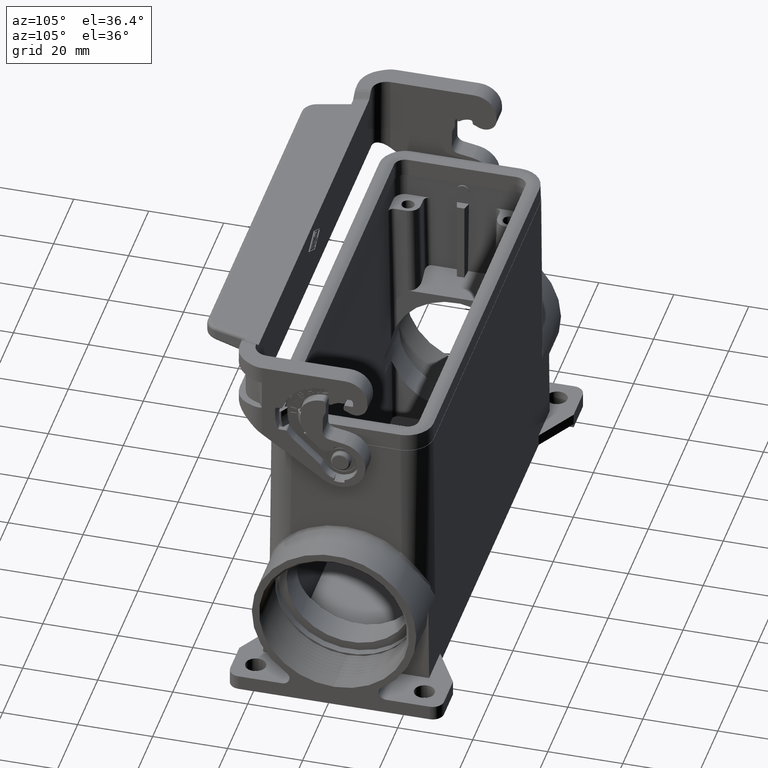
[diagram: clean part render]
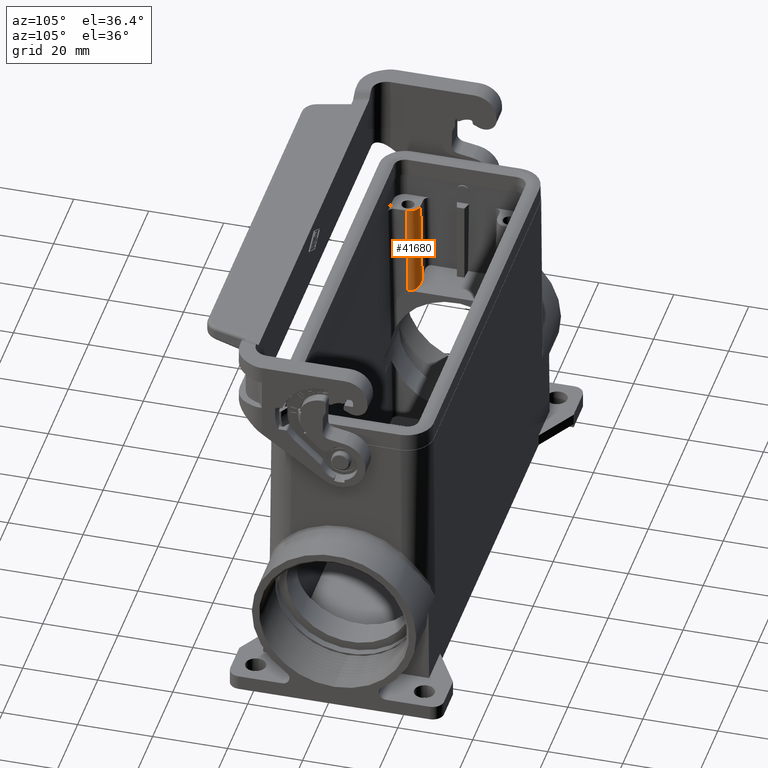
[diagram: same view with one face highlighted and labeled with its STEP entity id]
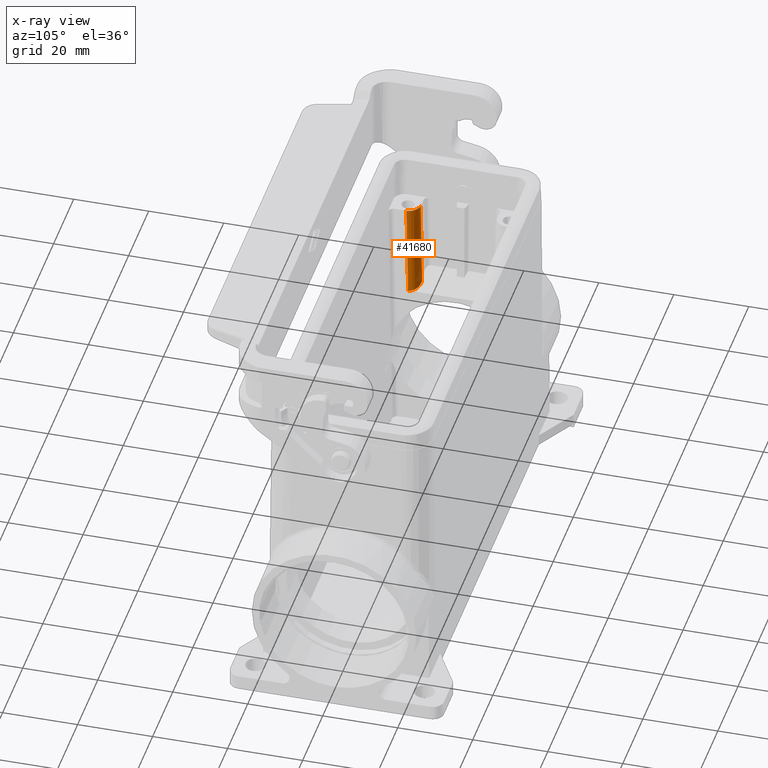
[diagram: x-ray of the same camera — body ghosted, the highlighted face saturated]
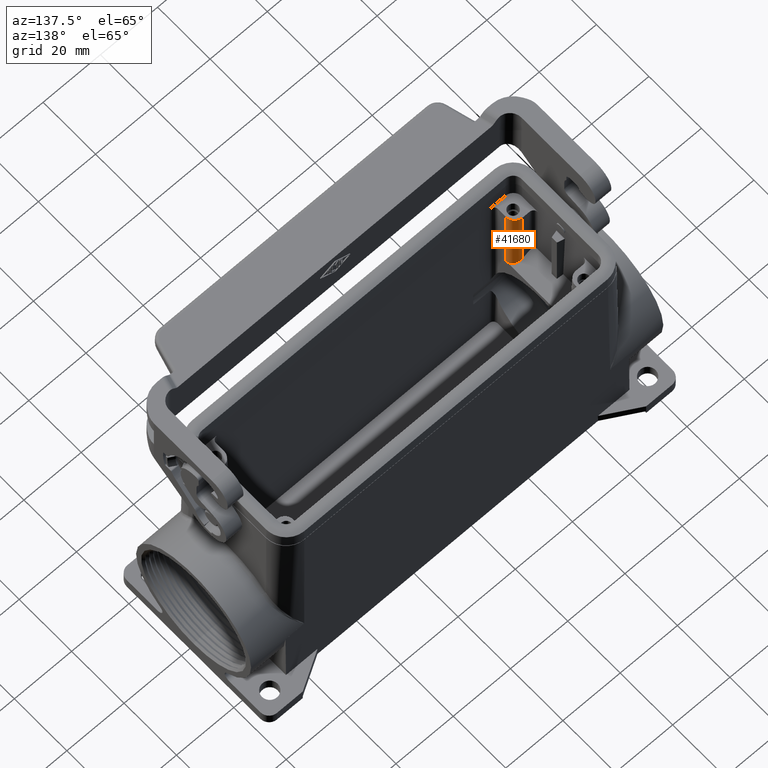
[diagram: same view with one face highlighted and labeled with its STEP entity id]
A machine part, auxiliary view. The second image highlights one B-rep face of the part: STEP entity #41680.
The next image is the same camera in x-ray: the body ghosted, the highlighted face saturated — about 0% of this face is hidden behind the body in this view.
A second angle (auxiliary view) of the same face is appended — the face is thin or edge-on in the first view.
In plain terms, the highlighted cylindrical surface (edge-blend (fillet) strip) has radius 3 mm, axis along (0.0233, 0.0233, -0.9995).
Its self-contained STEP definition (entity closure, byte-faithful):
#37890=CARTESIAN_POINT('',(112.567765723945,50.40508,68.));
#37900=VERTEX_POINT('',#37890);
#37930=CARTESIAN_POINT('',(112.569390496046,53.4058924960459,68.));
#37940=DIRECTION('',(0.,1.22464679914735E-16,-1.));
#37950=DIRECTION('',(0.707106781186348,0.707106781186747,
8.65956056235737E-17));
#37960=AXIS2_PLACEMENT_3D('',#37930,#37940,#37950);
#37970=ELLIPSE('',#37960,3.00162477216089,3.);
#37980=CARTESIAN_POINT('',(109.568578,53.4042677239445,68.));
#37990=VERTEX_POINT('',#37980);
#38000=EDGE_CURVE('',#37900,#37990,#37970,.T.);
#40530=CARTESIAN_POINT('',(112.024541700983,49.8618559770384,
44.6608752298995));
#40540=VERTEX_POINT('',#40530);
#40570=CARTESIAN_POINT('',(110.98667332369,48.8239875997458,
0.0698068516735796));
#40580=DIRECTION('',(-0.0232626536972686,-0.0232626536972685,
-0.999458702441438));
#40590=VECTOR('',#40580,1.);
#40600=LINE('',#40570,#40590);
#40610=EDGE_CURVE('',#37900,#40540,#40600,.T.);
#41440=CARTESIAN_POINT('',(110.98667332369,51.8231753236903,
-2.20752008522231E-14));
#41450=DIRECTION('',(-0.0232626536972686,-0.0232626536972685,
-0.999458702441438));
#41460=DIRECTION('',(0.999729241314835,2.84962458202103E-18,
-0.0232689505578674));
#41470=AXIS2_PLACEMENT_3D('',#41440,#41450,#41460);
#41480=CYLINDRICAL_SURFACE('',#41470,3.);
#41490=CARTESIAN_POINT('',(112.026187415184,52.8626894151835,
44.661774988096));
#41500=DIRECTION('',(0.4797131183549,1.07453620167786E-16,
-0.877425395163724));
#41510=DIRECTION('',(-0.87647678221175,-0.0464875874867933,
-0.479194484998934));
#41520=AXIS2_PLACEMENT_3D('',#41490,#41500,#41510);
#41530=ELLIPSE('',#41520,3.46503929685087,3.);
#41540=CARTESIAN_POINT('',(108.986696686634,52.8223864105785,43.));
#41550=VERTEX_POINT('',#41540);
#41560=EDGE_CURVE('',#40540,#41550,#41530,.T.);
#41570=ORIENTED_EDGE('',*,*,#41560,.F.);
#41580=CARTESIAN_POINT('',(107.987485599746,51.8231753236903,
0.06980685167358));
#41590=DIRECTION('',(-0.0232626536972686,-0.0232626536972685,
-0.999458702441438));
#41600=VECTOR('',#41590,1.);
#41610=LINE('',#41580,#41600);
#41620=EDGE_CURVE('',#37990,#41550,#41610,.T.);
#41630=ORIENTED_EDGE('',*,*,#41620,.T.);
#41640=ORIENTED_EDGE('',*,*,#38000,.T.);
#41650=ORIENTED_EDGE('',*,*,#40610,.F.);
#41660=EDGE_LOOP('',(#41650,#41640,#41630,#41570));
#41670=FACE_OUTER_BOUND('',#41660,.T.);
#41680=ADVANCED_FACE('',(#41670),#41480,.T.);